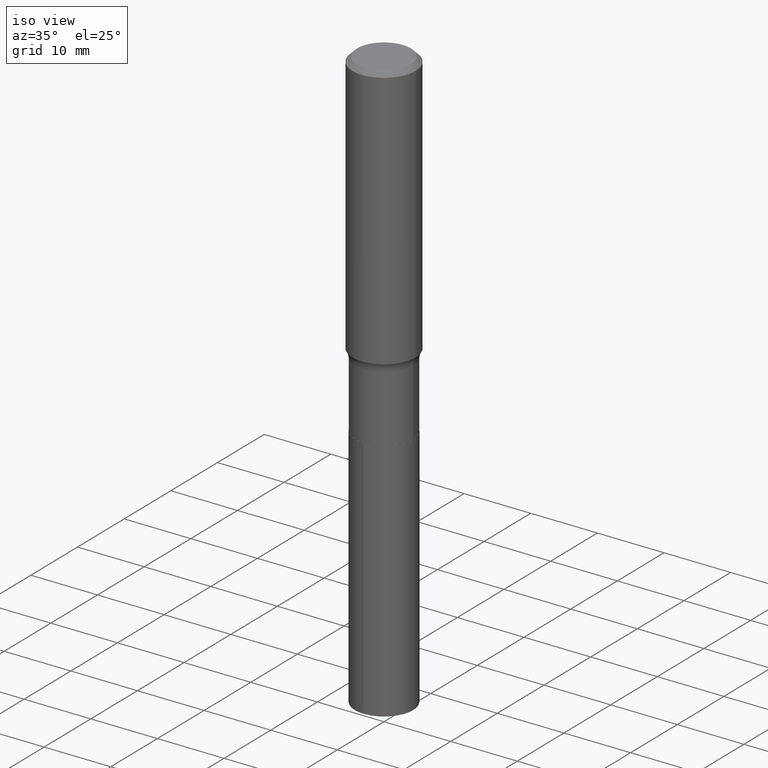
[diagram: clean part render]
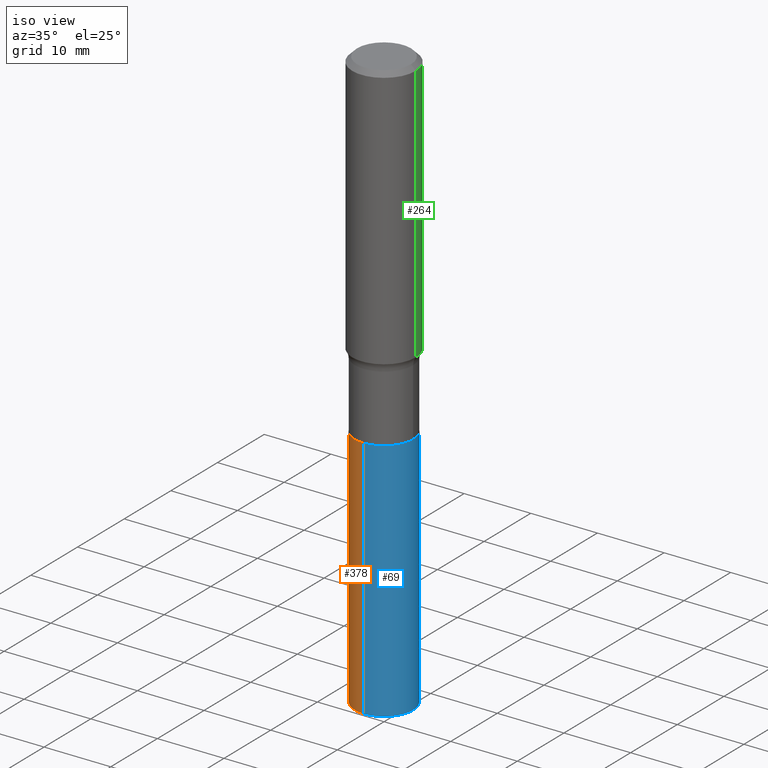
[diagram: same view with three faces highlighted in distinct colors, each labeled with its STEP entity id]
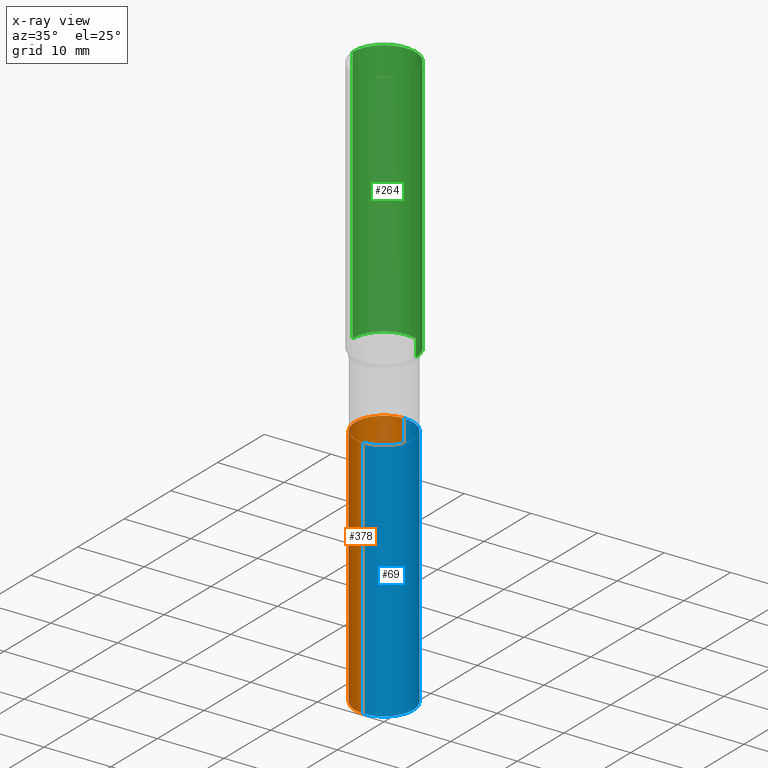
[diagram: x-ray of the same camera — body ghosted, the three highlighted faces saturated]
A machine part, iso view with three faces highlighted in distinct colors.
The next image is the same camera in x-ray (body ghosted, the three faces saturated) — at least one of them is partly hidden behind the body in this view.
Their STEP definitions:

[orange] entity #378 — the highlighted cylindrical surface (edge-blend (fillet) strip) has radius 4.3663 mm, axis along (-0, 0, 1).
#6 = VERTEX_POINT ( 'NONE', #184 ) ;
#9 = DIRECTION ( 'NONE',  ( -2.445371005331358683E-29, 3.491621395232234607E-15, 1.000000000000000000 ) ) ;
#12 = CARTESIAN_POINT ( 'NONE',  ( 1.221422962771695622E-15, 0.1718999999999878681, -3.445800138191703610 ) ) ;
#44 = CIRCLE ( 'NONE', #179, 0.1718999999999999695 ) ;
#48 = CARTESIAN_POINT ( 'NONE',  ( 1.221422962771660912E-15, 0.1718999999999930028, -2.000000000000000444 ) ) ;
#50 = CYLINDRICAL_SURFACE ( 'NONE', #134, 0.1718999999999999695 ) ;
#55 = CIRCLE ( 'NONE', #259, 0.1718999999999999695 ) ;
#118 = EDGE_CURVE ( 'NONE', #402, #317, #44, .T. ) ;
#131 = ORIENTED_EDGE ( 'NONE', *, *, #410, .F. ) ;
#134 = AXIS2_PLACEMENT_3D ( 'NONE', #318, #470, #283 ) ;
#147 = DIRECTION ( 'NONE',  ( -6.982962677686266711E-15, -1.000000000000000000, 3.178415350394722068E-15 ) ) ;
#178 = EDGE_LOOP ( 'NONE', ( #358, #360, #391, #131 ) ) ;
#179 = AXIS2_PLACEMENT_3D ( 'NONE', #444, #406, #453 ) ;
#180 = VECTOR ( 'NONE', #9, 39.37007874015748143 ) ;
#183 = EDGE_CURVE ( 'NONE', #402, #473, #423, .T. ) ;
#184 = CARTESIAN_POINT ( 'NONE',  ( -1.200371284294219937E-15, -0.1719000000000069361, -1.999999999999999112 ) ) ;
#197 = DIRECTION ( 'NONE',  ( -2.445371005331358683E-29, 3.491621395232234607E-15, 1.000000000000000000 ) ) ;
#203 = LINE ( 'NONE', #350, #180 ) ;
#207 = VECTOR ( 'NONE', #197, 39.37007874015748143 ) ;
#257 = CARTESIAN_POINT ( 'NONE',  ( 1.221422962771696214E-15, 0.1718999999999930028, -2.000000000000000444 ) ) ;
#259 = AXIS2_PLACEMENT_3D ( 'NONE', #467, #408, #147 ) ;
#275 = CARTESIAN_POINT ( 'NONE',  ( -1.200371284294184241E-15, -0.1719000000000119599, -3.445800138191702278 ) ) ;
#283 = DIRECTION ( 'NONE',  ( -6.982962677686266711E-15, -1.000000000000000000, 3.178415350394722068E-15 ) ) ;
#317 = VERTEX_POINT ( 'NONE', #275 ) ;
#318 = CARTESIAN_POINT ( 'NONE',  ( 4.890937612370272633E-29, -6.982962677686290376E-15, -1.999999999999999778 ) ) ;
#350 = CARTESIAN_POINT ( 'NONE',  ( -1.200371284294219937E-15, -0.1719000000000069361, -1.999999999999999112 ) ) ;
#358 = ORIENTED_EDGE ( 'NONE', *, *, #183, .F. ) ;
#360 = ORIENTED_EDGE ( 'NONE', *, *, #118, .T. ) ;
#378 = ADVANCED_FACE ( 'NONE', ( #396 ), #50, .T. ) ;
#384 = EDGE_CURVE ( 'NONE', #317, #6, #203, .T. ) ;
#391 = ORIENTED_EDGE ( 'NONE', *, *, #384, .T. ) ;
#396 = FACE_OUTER_BOUND ( 'NONE', #178, .T. ) ;
#402 = VERTEX_POINT ( 'NONE', #12 ) ;
#406 = DIRECTION ( 'NONE',  ( -2.445371005331358683E-29, 3.491621395232234607E-15, 1.000000000000000000 ) ) ;
#408 = DIRECTION ( 'NONE',  ( -2.445371005331358683E-29, 3.491621395232234607E-15, 1.000000000000000000 ) ) ;
#410 = EDGE_CURVE ( 'NONE', #473, #6, #55, .T. ) ;
#423 = LINE ( 'NONE', #48, #207 ) ;
#444 = CARTESIAN_POINT ( 'NONE',  ( 8.426455349808333467E-29, -1.203114937342616331E-14, -3.445800138191702722 ) ) ;
#453 = DIRECTION ( 'NONE',  ( -6.982962677686266711E-15, -1.000000000000000000, 3.178415350394722068E-15 ) ) ;
#467 = CARTESIAN_POINT ( 'NONE',  ( 4.890937612370272633E-29, -6.982962677686290376E-15, -1.999999999999999778 ) ) ;
#470 = DIRECTION ( 'NONE',  ( -2.445371005331358683E-29, 3.491621395232234607E-15, 1.000000000000000000 ) ) ;
#473 = VERTEX_POINT ( 'NONE', #257 ) ;

[blue] entity #69 — the highlighted cylindrical surface (edge-blend (fillet) strip) has radius 4.3663 mm, axis along (-0, 0, 1).
#2 = AXIS2_PLACEMENT_3D ( 'NONE', #486, #218, #152 ) ;
#6 = VERTEX_POINT ( 'NONE', #184 ) ;
#9 = DIRECTION ( 'NONE',  ( -2.445371005331358683E-29, 3.491621395232234607E-15, 1.000000000000000000 ) ) ;
#12 = CARTESIAN_POINT ( 'NONE',  ( 1.221422962771695622E-15, 0.1718999999999878681, -3.445800138191703610 ) ) ;
#26 = EDGE_CURVE ( 'NONE', #317, #402, #83, .T. ) ;
#48 = CARTESIAN_POINT ( 'NONE',  ( 1.221422962771660912E-15, 0.1718999999999930028, -2.000000000000000444 ) ) ;
#69 = ADVANCED_FACE ( 'NONE', ( #186 ), #333, .T. ) ;
#83 = CIRCLE ( 'NONE', #441, 0.1718999999999999695 ) ;
#93 = CARTESIAN_POINT ( 'NONE',  ( 4.890937612370272633E-29, -6.982962677686290376E-15, -1.999999999999999778 ) ) ;
#146 = DIRECTION ( 'NONE',  ( -2.445371005331358683E-29, 3.491621395232234607E-15, 1.000000000000000000 ) ) ;
#152 = DIRECTION ( 'NONE',  ( -6.982962677686266711E-15, -1.000000000000000000, 3.178415350394722068E-15 ) ) ;
#172 = CIRCLE ( 'NONE', #212, 0.1718999999999999695 ) ;
#180 = VECTOR ( 'NONE', #9, 39.37007874015748143 ) ;
#181 = DIRECTION ( 'NONE',  ( -6.982962677686266711E-15, -1.000000000000000000, 3.178415350394722068E-15 ) ) ;
#183 = EDGE_CURVE ( 'NONE', #402, #473, #423, .T. ) ;
#184 = CARTESIAN_POINT ( 'NONE',  ( -1.200371284294219937E-15, -0.1719000000000069361, -1.999999999999999112 ) ) ;
#186 = FACE_OUTER_BOUND ( 'NONE', #417, .T. ) ;
#197 = DIRECTION ( 'NONE',  ( -2.445371005331358683E-29, 3.491621395232234607E-15, 1.000000000000000000 ) ) ;
#203 = LINE ( 'NONE', #350, #180 ) ;
#207 = VECTOR ( 'NONE', #197, 39.37007874015748143 ) ;
#212 = AXIS2_PLACEMENT_3D ( 'NONE', #93, #432, #466 ) ;
#218 = DIRECTION ( 'NONE',  ( -2.445371005331358683E-29, 3.491621395232234607E-15, 1.000000000000000000 ) ) ;
#236 = ORIENTED_EDGE ( 'NONE', *, *, #322, .F. ) ;
#245 = ORIENTED_EDGE ( 'NONE', *, *, #183, .T. ) ;
#257 = CARTESIAN_POINT ( 'NONE',  ( 1.221422962771696214E-15, 0.1718999999999930028, -2.000000000000000444 ) ) ;
#274 = ORIENTED_EDGE ( 'NONE', *, *, #384, .F. ) ;
#275 = CARTESIAN_POINT ( 'NONE',  ( -1.200371284294184241E-15, -0.1719000000000119599, -3.445800138191702278 ) ) ;
#296 = ORIENTED_EDGE ( 'NONE', *, *, #26, .T. ) ;
#317 = VERTEX_POINT ( 'NONE', #275 ) ;
#322 = EDGE_CURVE ( 'NONE', #6, #473, #172, .T. ) ;
#333 = CYLINDRICAL_SURFACE ( 'NONE', #2, 0.1718999999999999695 ) ;
#350 = CARTESIAN_POINT ( 'NONE',  ( -1.200371284294219937E-15, -0.1719000000000069361, -1.999999999999999112 ) ) ;
#384 = EDGE_CURVE ( 'NONE', #317, #6, #203, .T. ) ;
#402 = VERTEX_POINT ( 'NONE', #12 ) ;
#417 = EDGE_LOOP ( 'NONE', ( #296, #245, #236, #274 ) ) ;
#423 = LINE ( 'NONE', #48, #207 ) ;
#432 = DIRECTION ( 'NONE',  ( -2.445371005331358683E-29, 3.491621395232234607E-15, 1.000000000000000000 ) ) ;
#441 = AXIS2_PLACEMENT_3D ( 'NONE', #479, #146, #181 ) ;
#466 = DIRECTION ( 'NONE',  ( -6.982962677686266711E-15, -1.000000000000000000, 3.178415350394722068E-15 ) ) ;
#473 = VERTEX_POINT ( 'NONE', #257 ) ;
#479 = CARTESIAN_POINT ( 'NONE',  ( 8.426455349808333467E-29, -1.203114937342616331E-14, -3.445800138191702722 ) ) ;
#486 = CARTESIAN_POINT ( 'NONE',  ( 4.890937612370272633E-29, -6.982962677686290376E-15, -1.999999999999999778 ) ) ;

[green] entity #264 — the highlighted cylindrical surface (partial cylindrical patch) has radius 4.7625 mm, axis along (-0, 0, 1).
#7 = CARTESIAN_POINT ( 'NONE',  ( 0.1875000000000000555, -1.407503414721139514E-15, -0.02812500000000019498 ) ) ;
#11 = EDGE_CURVE ( 'NONE', #125, #226, #289, .T. ) ;
#20 = DIRECTION ( 'NONE',  ( 1.000000000000000000, -6.982962677686265133E-15, 0.000000000000000000 ) ) ;
#29 = EDGE_LOOP ( 'NONE', ( #140, #209, #326, #86 ) ) ;
#34 = CARTESIAN_POINT ( 'NONE',  ( 0.1875000000000001110, -1.309305502066175797E-15, 9.142831454617385217E-30 ) ) ;
#66 = CARTESIAN_POINT ( 'NONE',  ( 3.809551306275204271E-29, -5.439029629649850300E-15, -1.557799999999999407 ) ) ;
#67 = DIRECTION ( 'NONE',  ( 1.000000000000000000, -6.982962677686265922E-15, 0.000000000000000000 ) ) ;
#70 = DIRECTION ( 'NONE',  ( -2.445468806185136597E-29, 3.491481338843145583E-15, 1.000000000000000000 ) ) ;
#82 = AXIS2_PLACEMENT_3D ( 'NONE', #139, #70, #67 ) ;
#86 = ORIENTED_EDGE ( 'NONE', *, *, #11, .F. ) ;
#89 = VECTOR ( 'NONE', #329, 39.37007874015748143 ) ;
#102 = DIRECTION ( 'NONE',  ( -2.445468806185136597E-29, 3.491481338843145583E-15, 1.000000000000000000 ) ) ;
#114 = VERTEX_POINT ( 'NONE', #395 ) ;
#116 = CARTESIAN_POINT ( 'NONE',  ( 0.1875000000000002498, -6.748335131716026097E-15, -1.557799999999999407 ) ) ;
#125 = VERTEX_POINT ( 'NONE', #116 ) ;
#128 = AXIS2_PLACEMENT_3D ( 'NONE', #66, #102, #20 ) ;
#139 = CARTESIAN_POINT ( 'NONE',  ( 6.877881017395745374E-31, -9.819791265496414867E-17, -0.02812500000000019498 ) ) ;
#140 = ORIENTED_EDGE ( 'NONE', *, *, #476, .T. ) ;
#142 = LINE ( 'NONE', #413, #362 ) ;
#159 = EDGE_CURVE ( 'NONE', #226, #114, #297, .T. ) ;
#196 = CARTESIAN_POINT ( 'NONE',  ( 0.000000000000000000, 0.000000000000000000, 0.000000000000000000 ) ) ;
#209 = ORIENTED_EDGE ( 'NONE', *, *, #430, .T. ) ;
#226 = VERTEX_POINT ( 'NONE', #7 ) ;
#227 = DIRECTION ( 'NONE',  ( 1.000000000000000000, -6.982962677686266711E-15, 4.876176775795935793E-29 ) ) ;
#242 = AXIS2_PLACEMENT_3D ( 'NONE', #196, #340, #227 ) ;
#262 = CYLINDRICAL_SURFACE ( 'NONE', #242, 0.1875000000000001110 ) ;
#264 = ADVANCED_FACE ( 'NONE', ( #306 ), #262, .T. ) ;
#289 = LINE ( 'NONE', #34, #89 ) ;
#295 = VERTEX_POINT ( 'NONE', #383 ) ;
#297 = CIRCLE ( 'NONE', #82, 0.1875000000000000555 ) ;
#306 = FACE_OUTER_BOUND ( 'NONE', #29, .T. ) ;
#326 = ORIENTED_EDGE ( 'NONE', *, *, #159, .F. ) ;
#329 = DIRECTION ( 'NONE',  ( -2.445468806185136877E-29, 3.491481338843145188E-15, 1.000000000000000000 ) ) ;
#340 = DIRECTION ( 'NONE',  ( -2.445468806185136597E-29, 3.491481338843145583E-15, 1.000000000000000000 ) ) ;
#362 = VECTOR ( 'NONE', #363, 39.37007874015748143 ) ;
#363 = DIRECTION ( 'NONE',  ( -2.445468806185136877E-29, 3.491481338843145188E-15, 1.000000000000000000 ) ) ;
#383 = CARTESIAN_POINT ( 'NONE',  ( -0.1875000000000002498, -4.106762000099660085E-15, -1.557799999999999407 ) ) ;
#395 = CARTESIAN_POINT ( 'NONE',  ( -0.1875000000000000555, -1.436346141602218174E-15, -0.02812500000000019498 ) ) ;
#412 = CIRCLE ( 'NONE', #128, 0.1875000000000002220 ) ;
#413 = CARTESIAN_POINT ( 'NONE',  ( -0.1875000000000001110, 1.332267629550188637E-15, -9.223003294227953596E-30 ) ) ;
#430 = EDGE_CURVE ( 'NONE', #295, #114, #142, .T. ) ;
#476 = EDGE_CURVE ( 'NONE', #125, #295, #412, .T. ) ;